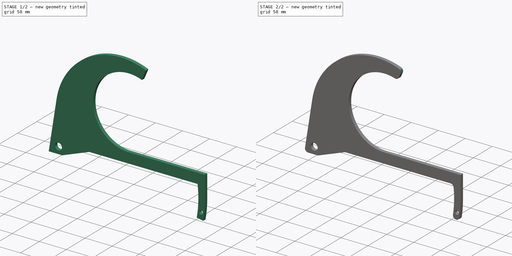
[diagram: build sequence overview — one tinted view per stage of 2, left to right]
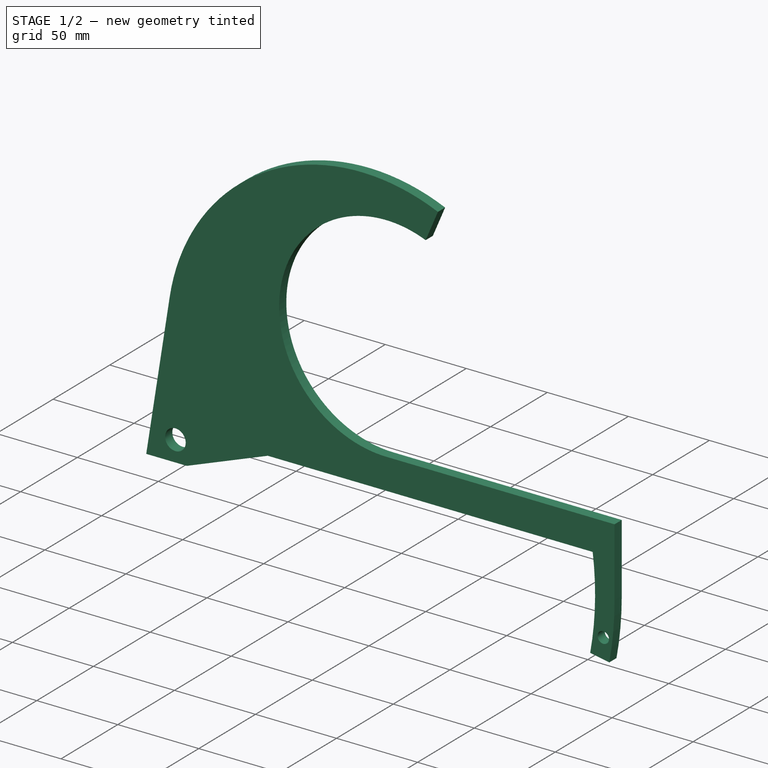
[diagram: stage 1 of 2 — iso view after this stage's code; geometry added in this stage tinted green]
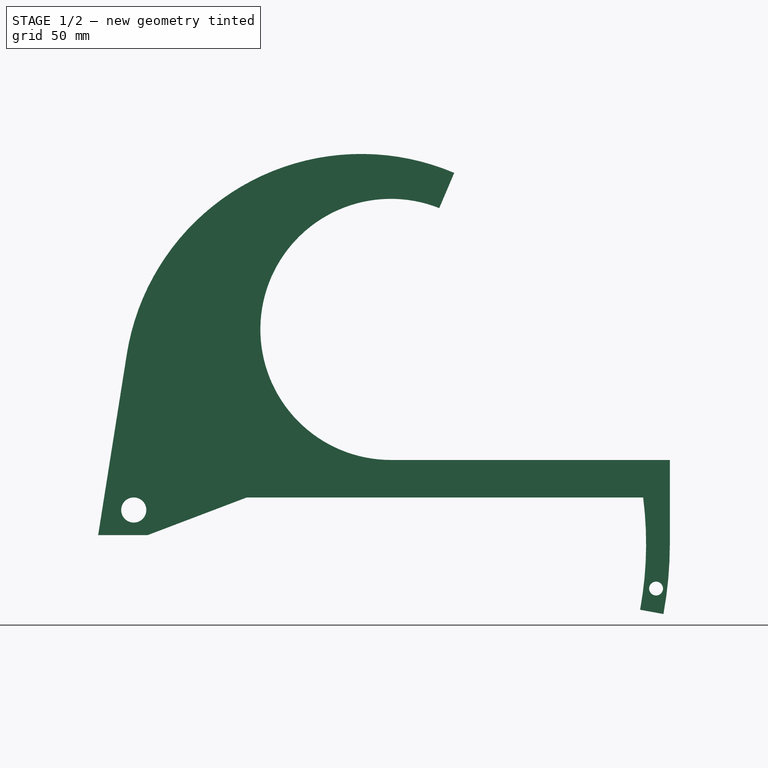
[diagram: stage 1 of 2 — front view after this stage's code; geometry added in this stage tinted green]
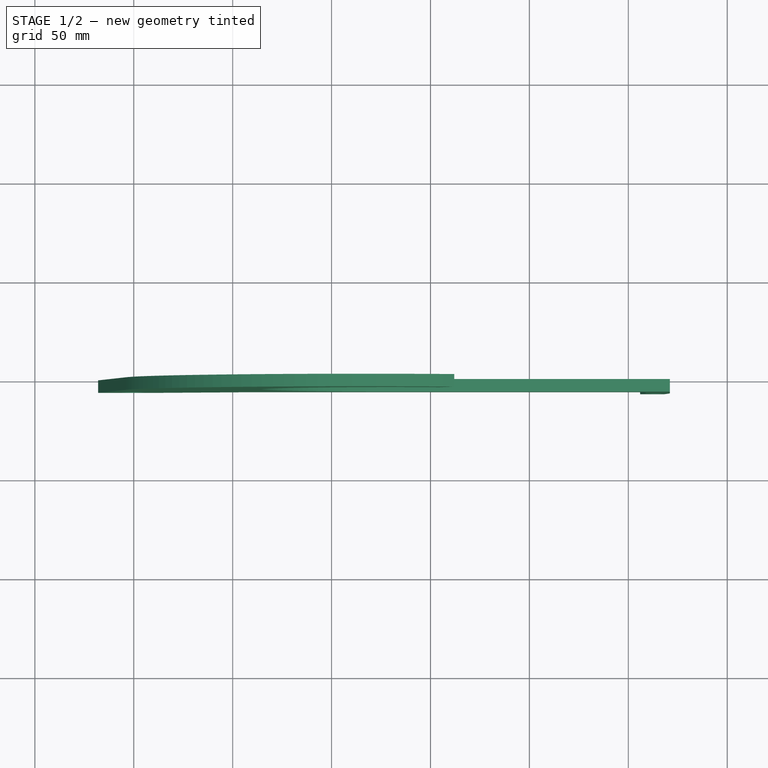
[diagram: stage 1 of 2 — top view after this stage's code; geometry added in this stage tinted green]
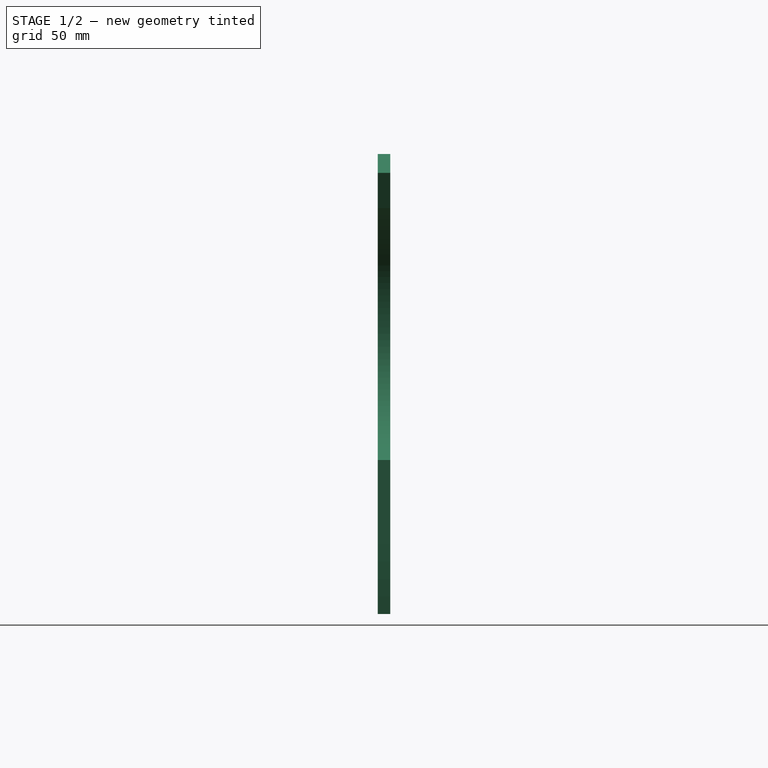
[diagram: stage 1 of 2 — right view after this stage's code; geometry added in this stage tinted green]
FCSTD DOCUMENT  (FreeCAD 0.18.4R)
Label: Rib presion
License: All rights reserved
LicenseURL: http://en.wikipedia.org/wiki/All_rights_reserved
objects: Sketcher::SketchObject×1, PartDesign::Pad×1, PartDesign::Fillet×1, PartDesign::Body×1, App::Part×1
note: 5 computed .brp shape members not serialized (recipe doc carries the construction recipe); baked Part::Feature solids carry a one-line shape summary decoded from their .brp

FEATURE [Sketcher::SketchObject] Sketch
  MapMode = 5
  Placement = pos=(0,0,0) rot=(1,0,0;1.5708rad)
  Support = -> [XZ_Plane001]
  sketch-geometry (18):
    g0: Circle CenterX=0 CenterY=0 CenterZ=0 NormalX=0 NormalY=0 NormalZ=1 AngleXU=0 Radius=6.35
    g1: LineSegment StartX=7 StartY=-12.7 StartZ=0 EndX=-18 EndY=-12.7 EndZ=0
    g2: LineSegment StartX=-18 StartY=-12.7 StartZ=0 EndX=-3.51224 EndY=78.7721 EndZ=0
    g3: ArcOfCircle CenterX=130 CenterY=91.3 CenterZ=0 NormalX=0 NormalY=0 NormalZ=1 AngleXU=0 Radius=66 StartAngle=1.19173 EndAngle=4.71239
    g4: LineSegment StartX=271 StartY=25.3 StartZ=0 EndX=130 EndY=25.3 EndZ=0
    g5: LineSegment StartX=271 StartY=25.3 StartZ=0 EndX=271 EndY=-17.097 EndZ=0
    g6: ArcOfCircle CenterX=75 CenterY=-17.097 CenterZ=0 NormalX=0 NormalY=0 NormalZ=1 AngleXU=0 Radius=196 StartAngle=6.1011 EndAngle=6.28319
    g7: ArcOfCircle CenterX=75 CenterY=-17.097 CenterZ=0 NormalX=0 NormalY=0 NormalZ=1 AngleXU=0 Radius=184 StartAngle=6.1011 EndAngle=6.41069
    g8: LineSegment StartX=7 StartY=-12.7 StartZ=0 EndX=57 EndY=6.3 EndZ=0
    g9: LineSegment StartX=57 StartY=6.3 StartZ=0 EndX=257.506 EndY=6.3 EndZ=0
    g10: LineSegment StartX=255.958 StartY=-50.4152 StartZ=0 EndX=267.76 EndY=-52.5881 EndZ=0
    g11: Circle CenterX=264.032 CenterY=-39.7 CenterZ=0 NormalX=0 NormalY=0 NormalZ=1 AngleXU=0 Radius=3.5
    g12: LineSegment [constr] StartX=162 StartY=170.417 StartZ=0 EndX=179.803 EndY=162.841 EndZ=0
    g13: ArcOfCircle CenterX=115.01 CenterY=60 CenterZ=0 NormalX=0 NormalY=0 NormalZ=1 AngleXU=0 Radius=120 StartAngle=1.16845 EndAngle=2.98451
    g14: LineSegment StartX=154.424 StartY=152.615 StartZ=0 EndX=162 EndY=170.417 EndZ=0
    g15: LineSegment [constr] StartX=261.859 StartY=-51.5016 StartZ=0 EndX=264.032 EndY=-39.7 EndZ=0
    g16: LineSegment [constr] StartX=267.76 StartY=-52.5881 StartZ=0 EndX=265.587 EndY=-64.3897 EndZ=0
    g17: Circle [constr] CenterX=0 CenterY=0 CenterZ=0 NormalX=0 NormalY=0 NormalZ=1 AngleXU=0 Radius=267
  constraints (50):
    c: Coincident(g0,g-1)
    c: Radius(g0) = 6.35
    c: Horizontal(g1)
    c: Coincident(g1,g2)
    c: Horizontal(g4)
    c: Coincident(g4,g5)
    c: Vertical(g5)
    c: Coincident(g1,g8)
    c: Coincident(g8,g9)
    c: Coincident(g9,g7)
    c: Horizontal(g9)
    c: Coincident(g7,g10)
    c: Tangent(g6,g5) = 1.5708
    c: Coincident(g6,g10)
    c: Angle(g1,g2) = 1.41372
    c: DistanceY(g1,g8) = 19
    c: DistanceY(g1,g0) = 12.7
    c: DistanceX(g1,g0) = 18
    c: Radius(g3) = 66
    c: Tangent(g4,g3) = 1.5708
    c: DistanceY(g7,g3) = 19
    c: Tangent(g13,g2) = 1.5708
    c: Radius(g13) = 120
    c: Coincident(g12,g13)
    c: Coincident(g14,g3)
    c: Coincident(g14,g13)
    c: Tangent(g12,g13,g13) = 1.5708
    c: Equal(g14,g12)
    c: Perpendicular(g12,g14)
    c: Radius(g7) = 184
    c: Radius(g6) = 196
    c: Coincident(g15,g11)
    c: Tangent(g16,g6) = 1.5708
    c: Perpendicular(g10,g16)
    c: Equal(g16,g10)
    c: Radius(g11) = 3.5
    c: Perpendicular(g15,g10)
    c: Symmetric(g6,g7,g15)
    c: Equal(g10,g15)
    c: DistanceX(g4,g4) = 141
    c: DistanceY(g0,g13) = 60
    c: DistanceX(g0,g3) = 130
    c: DistanceX(g0,g13) = 162
    c: DistanceX(g1,g1) = 25
    c: DistanceX(g1,g8) = 50
    c: Coincident(g7,g6)
    c: PointOnObject(g11,g17)
    c: Radius(g17) = 267
    c: Coincident(g0,g17)
    c: DistanceY(g11,g7) = 46
FEATURE [PartDesign::Pad] Pad
  Length = 6.35
  Length2 = 100
  Placement = pos=(0,0,0) rot=(1,0,0;1.5708rad)
  Profile = -> Sketch
  Refine = true
  Type = 0
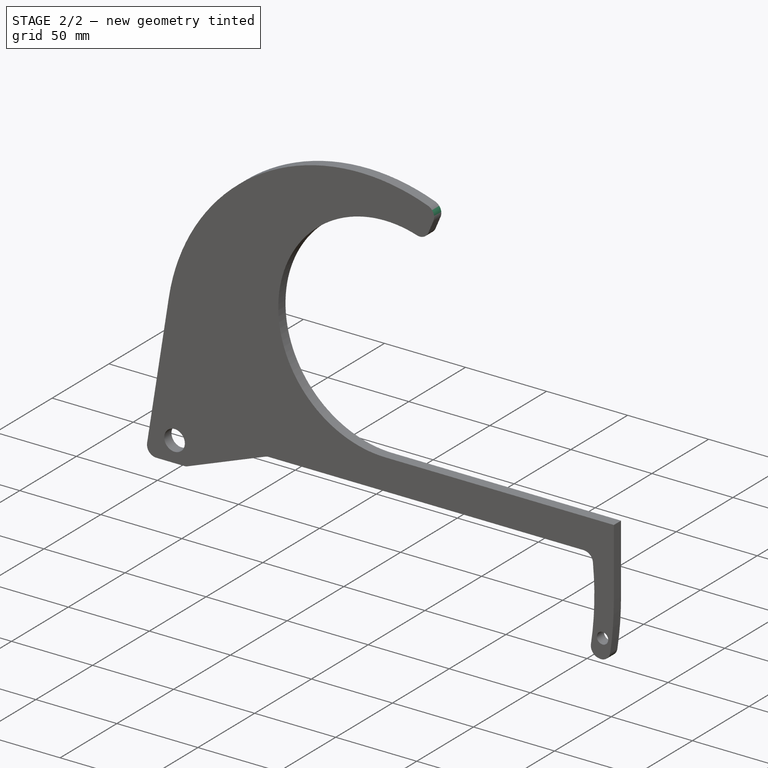
[diagram: stage 2 of 2 — iso view after this stage's code; geometry added in this stage tinted green]
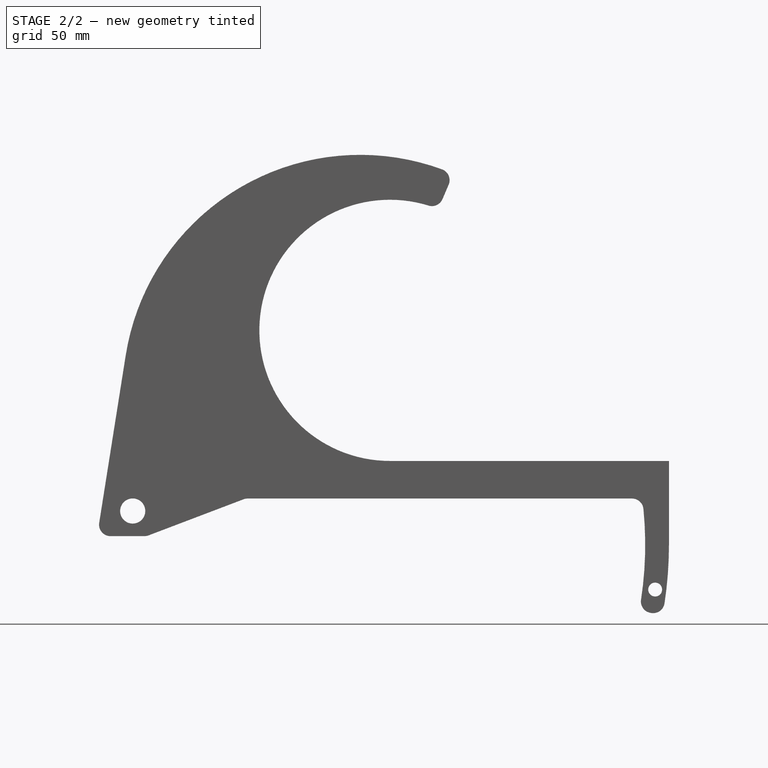
[diagram: stage 2 of 2 — front view after this stage's code; geometry added in this stage tinted green]
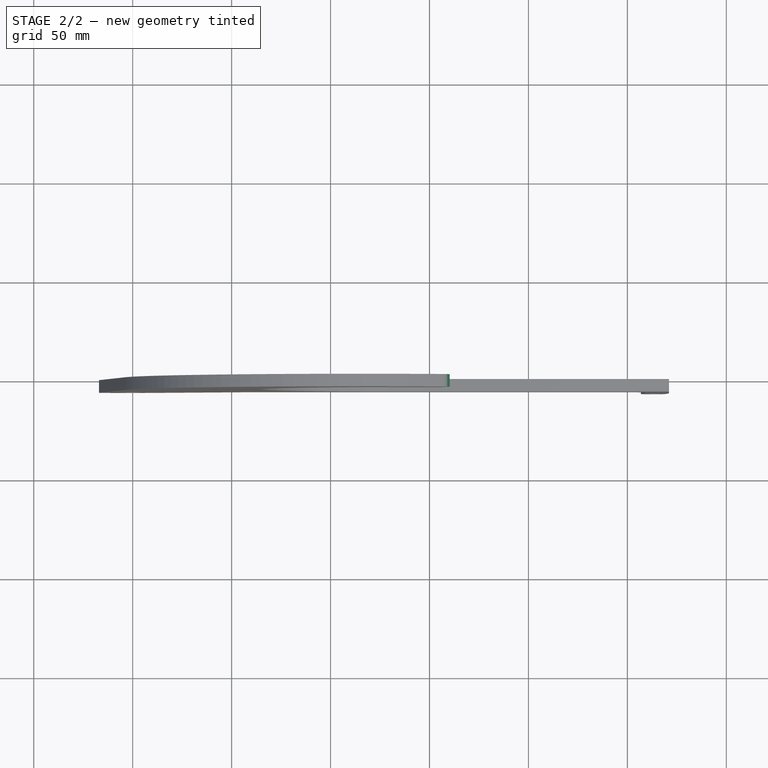
[diagram: stage 2 of 2 — top view after this stage's code; geometry added in this stage tinted green]
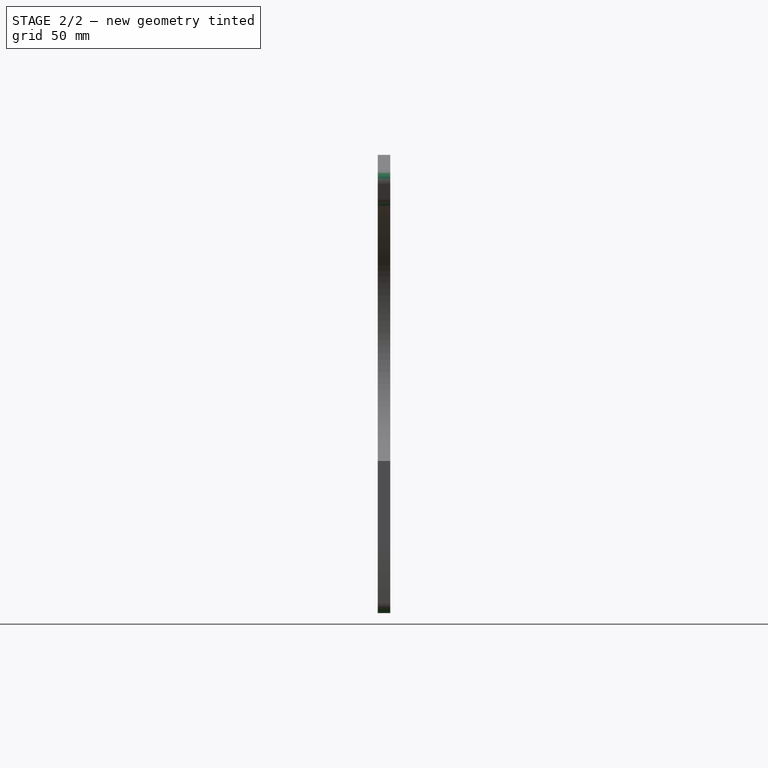
[diagram: stage 2 of 2 — right view after this stage's code; geometry added in this stage tinted green]
FEATURE [PartDesign::Fillet] Fillet
  Base = -> Pad [Edge14,Edge11,Edge26,Edge29,Edge32,Edge2,Edge1,Edge5]
  BaseFeature = -> Pad
  Placement = pos=(0,0,0) rot=(1,0,0;1.5708rad)
  Radius = 5.8
FEATURE [PartDesign::Body] Body
  Group = -> [Sketch,Pad,Fillet]
  Origin = -> Origin001
  Tip = -> Fillet
FEATURE [App::Part] Part
  Group = -> [Body]
  Origin = -> Origin
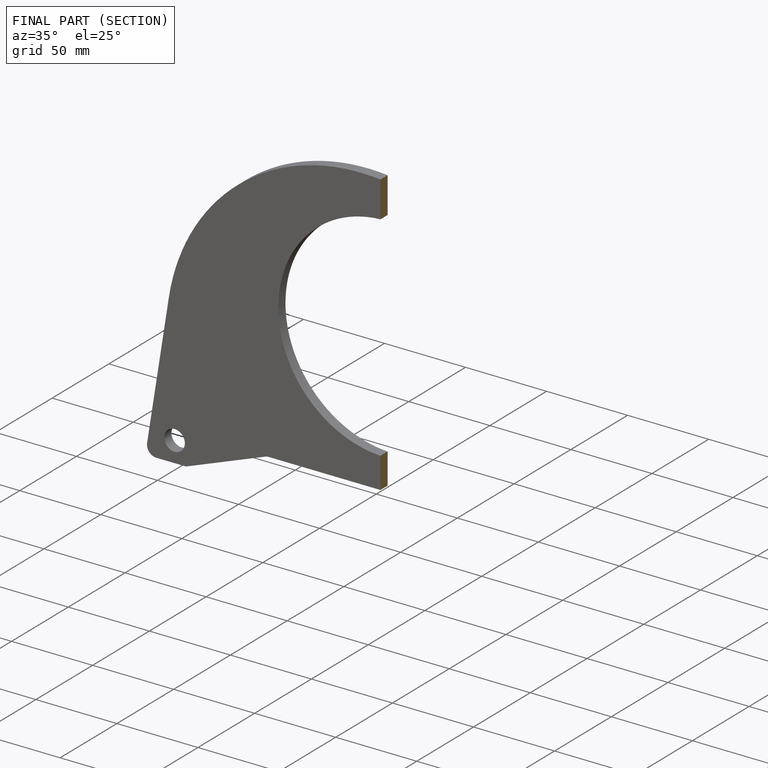
[diagram: finished part — half-section view (interior)]
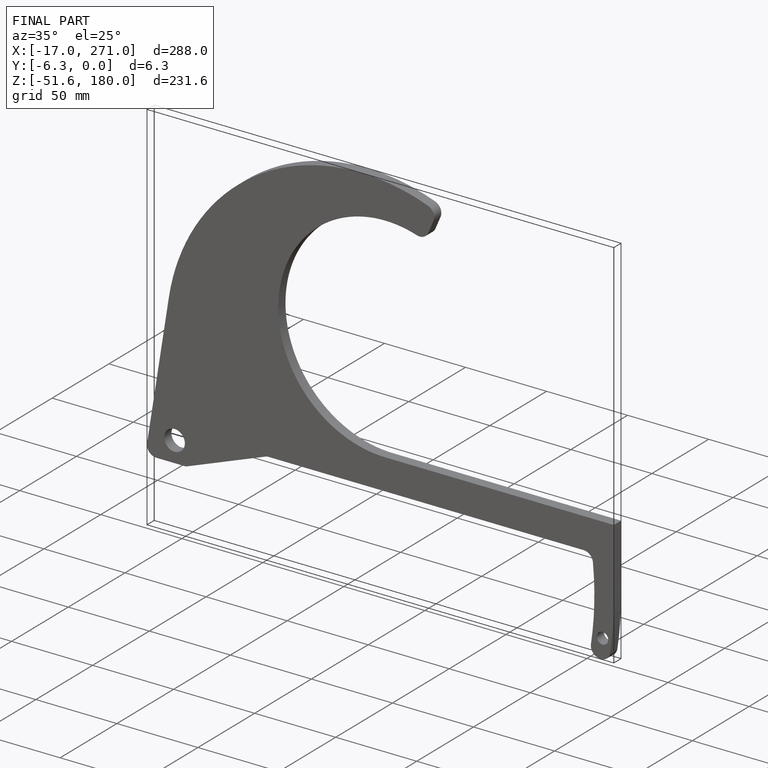
[diagram: finished part — iso view with bounding-box wireframe]
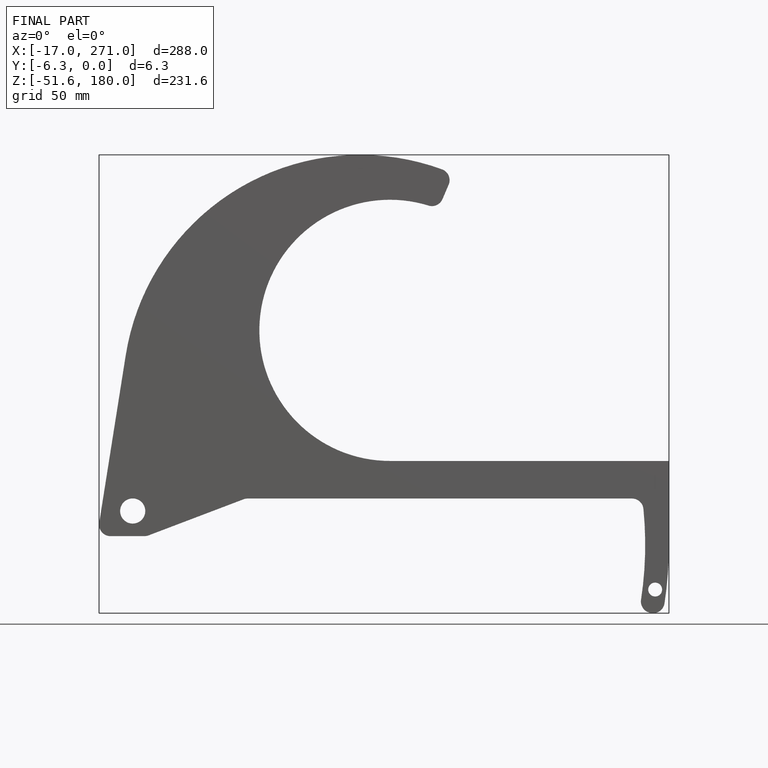
[diagram: finished part — front view with bounding-box wireframe]
